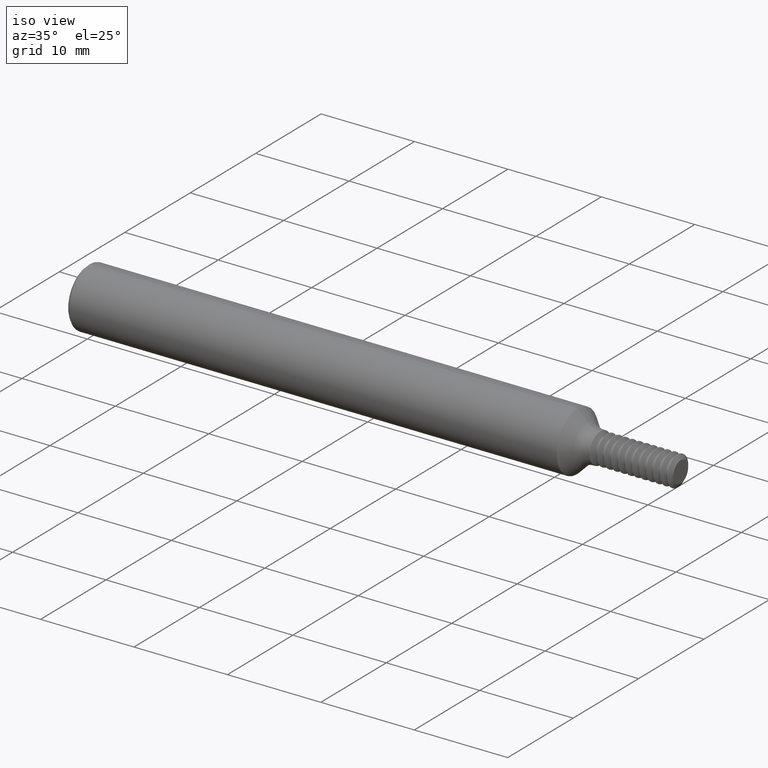
[diagram: clean part render]
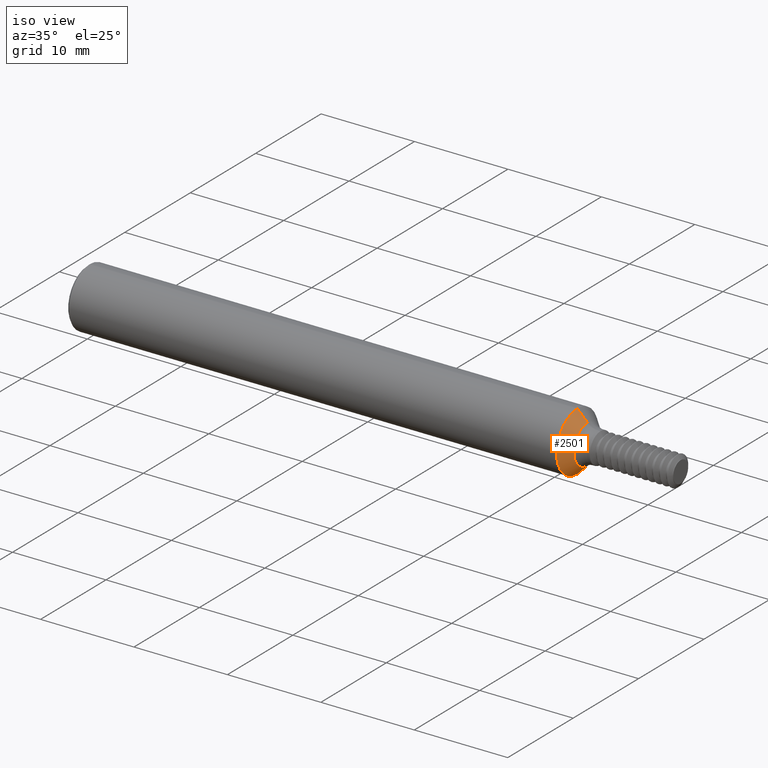
[diagram: same view with one face highlighted and labeled with its STEP entity id]
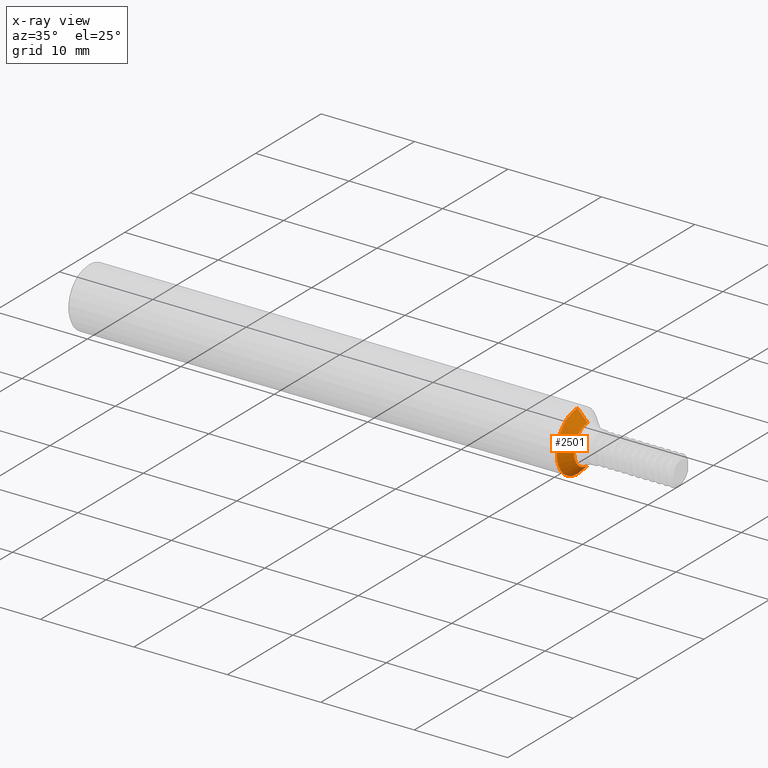
[diagram: x-ray of the same camera — body ghosted, the highlighted face saturated]
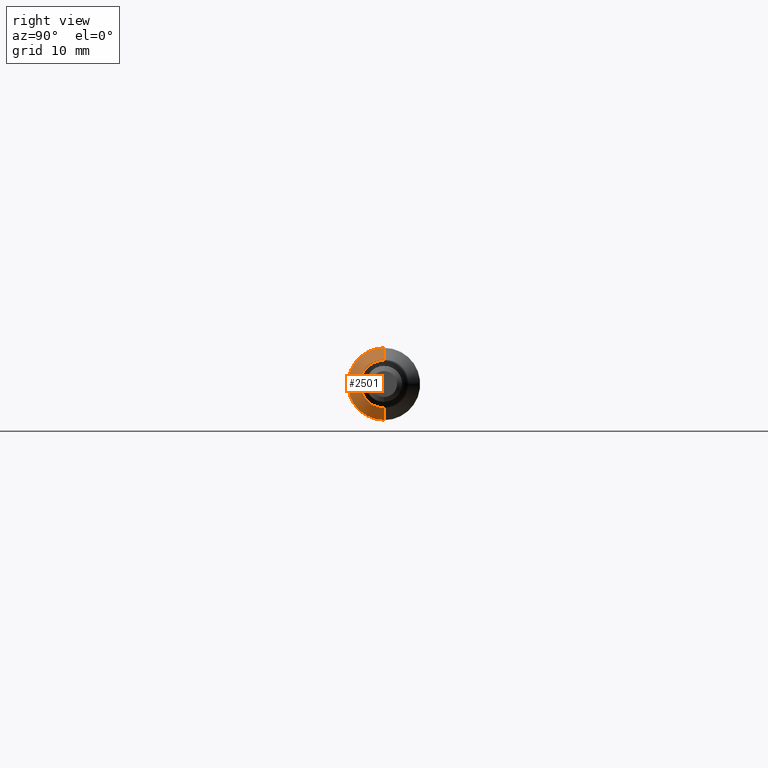
[diagram: same view with one face highlighted and labeled with its STEP entity id]
A machine part, iso view. The second image highlights one B-rep face of the part: STEP entity #2501.
The next image is the same camera in x-ray: the body ghosted, the highlighted face saturated — about 0% of this face is hidden behind the body in this view.
A second angle (right view) of the same face is appended — the face is thin or edge-on in the first view.
In plain terms, the highlighted conical surface has half-angle 45 deg.
Its self-contained STEP definition (entity closure, byte-faithful):
#1 = CARTESIAN_POINT ( 'NONE',  ( 2.107776406871192609, 0.000000000000000000, 0.08207359312880706248 ) ) ;
#5 = VERTEX_POINT ( 'NONE', #1743 ) ;
#87 = EDGE_CURVE ( 'NONE', #2089, #1963, #2235, .T. ) ;
#203 = DIRECTION ( 'NONE',  ( 0.000000000000000000, 0.000000000000000000, 1.000000000000000000 ) ) ;
#315 = EDGE_CURVE ( 'NONE', #5, #1963, #2593, .T. ) ;
#347 = FACE_OUTER_BOUND ( 'NONE', #1939, .T. ) ;
#388 = ORIENTED_EDGE ( 'NONE', *, *, #315, .F. ) ;
#455 = CIRCLE ( 'NONE', #1577, 0.08207359312880706248 ) ;
#521 = CONICAL_SURFACE ( 'NONE', #878, 0.08207359312880706248, 0.7853981633974520538 ) ;
#643 = CARTESIAN_POINT ( 'NONE',  ( 2.064999999999999947, 0.000000000000000000, 0.1248500000000000026 ) ) ;
#685 = ORIENTED_EDGE ( 'NONE', *, *, #2555, .F. ) ;
#710 = EDGE_CURVE ( 'NONE', #2383, #2089, #455, .T. ) ;
#766 = VECTOR ( 'NONE', #2653, 39.37007874015748143 ) ;
#848 = DIRECTION ( 'NONE',  ( -1.000000000000000000, -0.000000000000000000, -0.000000000000000000 ) ) ;
#878 = AXIS2_PLACEMENT_3D ( 'NONE', #1379, #1797, #1718 ) ;
#1130 = CARTESIAN_POINT ( 'NONE',  ( 2.064999999999999947, 0.000000000000000000, 0.000000000000000000 ) ) ;
#1260 = DIRECTION ( 'NONE',  ( 0.000000000000000000, 0.000000000000000000, 1.000000000000000000 ) ) ;
#1365 = CARTESIAN_POINT ( 'NONE',  ( 2.107776406871192609, 1.005111631197157743E-17, -0.08207359312880706248 ) ) ;
#1379 = CARTESIAN_POINT ( 'NONE',  ( 2.107776406871192609, 0.000000000000000000, 0.000000000000000000 ) ) ;
#1427 = AXIS2_PLACEMENT_3D ( 'NONE', #1130, #848, #1260 ) ;
#1481 = CARTESIAN_POINT ( 'NONE',  ( 2.107776406871192609, 1.267041579966314005E-17, -0.08207359312880706248 ) ) ;
#1577 = AXIS2_PLACEMENT_3D ( 'NONE', #2443, #2670, #203 ) ;
#1718 = DIRECTION ( 'NONE',  ( 0.000000000000000000, 0.000000000000000000, 1.000000000000000000 ) ) ;
#1743 = CARTESIAN_POINT ( 'NONE',  ( 2.064999999999999947, 1.528971528735470422E-17, -0.1248500000000000026 ) ) ;
#1745 = CARTESIAN_POINT ( 'NONE',  ( 2.107776406871192609, 0.000000000000000000, 0.08207359312880706248 ) ) ;
#1753 = ORIENTED_EDGE ( 'NONE', *, *, #710, .T. ) ;
#1797 = DIRECTION ( 'NONE',  ( -1.000000000000000000, -0.000000000000000000, -0.000000000000000000 ) ) ;
#1939 = EDGE_LOOP ( 'NONE', ( #685, #1753, #2658, #388 ) ) ;
#1963 = VERTEX_POINT ( 'NONE', #643 ) ;
#1977 = DIRECTION ( 'NONE',  ( -0.7071067811865449082, 8.659560562354964906E-17, -0.7071067811865501263 ) ) ;
#2089 = VERTEX_POINT ( 'NONE', #1745 ) ;
#2235 = LINE ( 'NONE', #1, #766 ) ;
#2341 = LINE ( 'NONE', #1365, #2394 ) ;
#2383 = VERTEX_POINT ( 'NONE', #1481 ) ;
#2394 = VECTOR ( 'NONE', #1977, 39.37007874015748143 ) ;
#2443 = CARTESIAN_POINT ( 'NONE',  ( 2.107776406871192609, 0.000000000000000000, 0.000000000000000000 ) ) ;
#2501 = ADVANCED_FACE ( 'NONE', ( #347 ), #521, .T. ) ;
#2555 = EDGE_CURVE ( 'NONE', #2383, #5, #2341, .T. ) ;
#2593 = CIRCLE ( 'NONE', #1427, 0.1248500000000000026 ) ;
#2653 = DIRECTION ( 'NONE',  ( -0.7071067811865449082, 0.000000000000000000, 0.7071067811865501263 ) ) ;
#2658 = ORIENTED_EDGE ( 'NONE', *, *, #87, .T. ) ;
#2670 = DIRECTION ( 'NONE',  ( -1.000000000000000000, -0.000000000000000000, -0.000000000000000000 ) ) ;